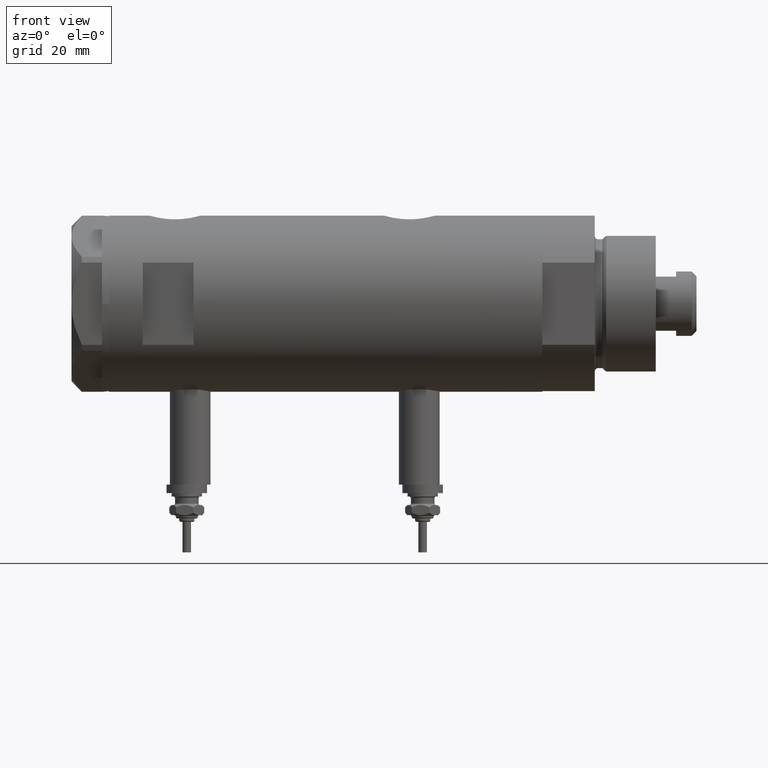
[diagram: clean part render]
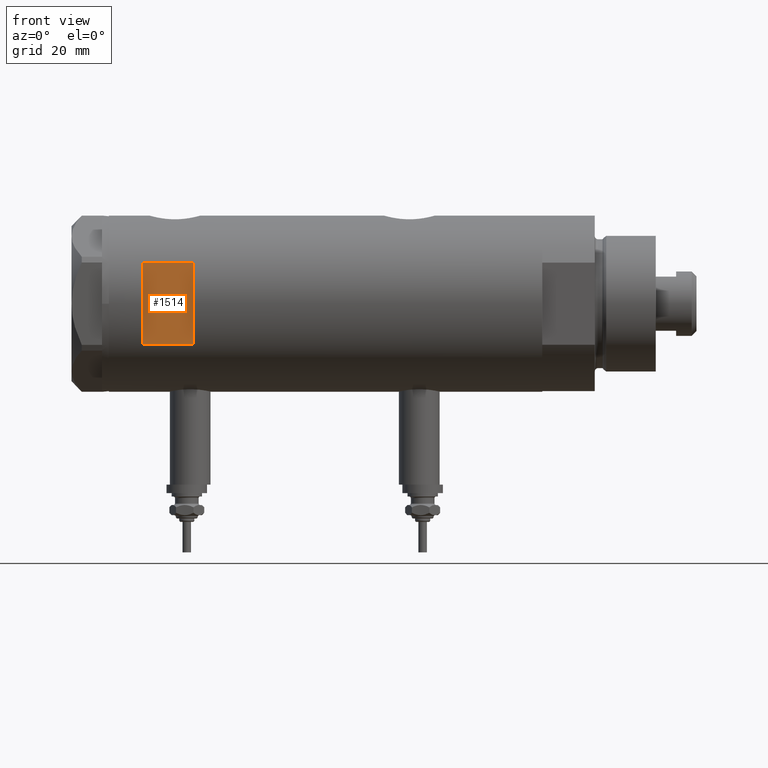
[diagram: same view with one face highlighted and labeled with its STEP entity id]
A machine part, front view. The second image highlights one B-rep face of the part: STEP entity #1514.
In plain terms, the highlighted planar face has unit normal (-0, 1, 0).
Its self-contained STEP definition (entity closure, byte-faithful):
#122 = DIRECTION ( 'NONE',  ( -0.000000000000000000, -0.000000000000000000, -1.000000000000000000 ) ) ;
#148 = VERTEX_POINT ( 'NONE', #2684 ) ;
#207 = LINE ( 'NONE', #5095, #2482 ) ;
#375 = ORIENTED_EDGE ( 'NONE', *, *, #1028, .T. ) ;
#707 = CARTESIAN_POINT ( 'NONE',  ( -12.12435565298214080, -23.00000000000000355, -63.95000000000000995 ) ) ;
#1028 = EDGE_CURVE ( 'NONE', #148, #2452, #207, .T. ) ;
#1051 = FACE_OUTER_BOUND ( 'NONE', #1996, .T. ) ;
#1215 = DIRECTION ( 'NONE',  ( 1.000000000000000000, -0.000000000000000000, -0.000000000000000000 ) ) ;
#1514 = ADVANCED_FACE ( 'NONE', ( #1051 ), #5975, .F. ) ;
#1551 = VECTOR ( 'NONE', #122, 1000.000000000000000 ) ;
#1593 = DIRECTION ( 'NONE',  ( 0.000000000000000000, 1.000000000000000000, 0.000000000000000000 ) ) ;
#1619 = LINE ( 'NONE', #707, #1551 ) ;
#1786 = VECTOR ( 'NONE', #5671, 1000.000000000000000 ) ;
#1845 = ORIENTED_EDGE ( 'NONE', *, *, #5520, .F. ) ;
#1883 = ORIENTED_EDGE ( 'NONE', *, *, #2761, .T. ) ;
#1996 = EDGE_LOOP ( 'NONE', ( #1883, #6302, #375, #1845 ) ) ;
#2452 = VERTEX_POINT ( 'NONE', #4251 ) ;
#2482 = VECTOR ( 'NONE', #6048, 1000.000000000000000 ) ;
#2684 = CARTESIAN_POINT ( 'NONE',  ( 12.12435565298214080, -23.00000000000000355, 38.94999999999999574 ) ) ;
#2761 = EDGE_CURVE ( 'NONE', #3656, #4270, #1619, .T. ) ;
#2960 = CARTESIAN_POINT ( 'NONE',  ( -12.12435565298214080, -23.00000000000000355, 38.94999999999999574 ) ) ;
#3012 = CARTESIAN_POINT ( 'NONE',  ( -26.00000000000000355, -23.00000000000000355, 53.94999999999999574 ) ) ;
#3143 = LINE ( 'NONE', #6082, #4455 ) ;
#3391 = AXIS2_PLACEMENT_3D ( 'NONE', #3012, #1593, #3543 ) ;
#3543 = DIRECTION ( 'NONE',  ( 0.000000000000000000, -0.000000000000000000, 1.000000000000000000 ) ) ;
#3656 = VERTEX_POINT ( 'NONE', #5032 ) ;
#4235 = EDGE_CURVE ( 'NONE', #4270, #148, #5194, .T. ) ;
#4251 = CARTESIAN_POINT ( 'NONE',  ( 12.12435565298214080, -23.00000000000000355, 53.94999999999999574 ) ) ;
#4270 = VERTEX_POINT ( 'NONE', #2960 ) ;
#4291 = CARTESIAN_POINT ( 'NONE',  ( -26.00000000000000355, -23.00000000000000355, 38.94999999999999574 ) ) ;
#4455 = VECTOR ( 'NONE', #1215, 1000.000000000000000 ) ;
#5032 = CARTESIAN_POINT ( 'NONE',  ( -12.12435565298214080, -23.00000000000000355, 53.94999999999999574 ) ) ;
#5095 = CARTESIAN_POINT ( 'NONE',  ( 12.12435565298214080, -23.00000000000000355, -63.95000000000000995 ) ) ;
#5194 = LINE ( 'NONE', #4291, #1786 ) ;
#5520 = EDGE_CURVE ( 'NONE', #3656, #2452, #3143, .T. ) ;
#5671 = DIRECTION ( 'NONE',  ( 1.000000000000000000, -0.000000000000000000, -0.000000000000000000 ) ) ;
#5975 = PLANE ( 'NONE',  #3391 ) ;
#6048 = DIRECTION ( 'NONE',  ( 0.000000000000000000, 0.000000000000000000, 1.000000000000000000 ) ) ;
#6082 = CARTESIAN_POINT ( 'NONE',  ( -26.00000000000000355, -23.00000000000000355, 53.94999999999999574 ) ) ;
#6302 = ORIENTED_EDGE ( 'NONE', *, *, #4235, .T. ) ;